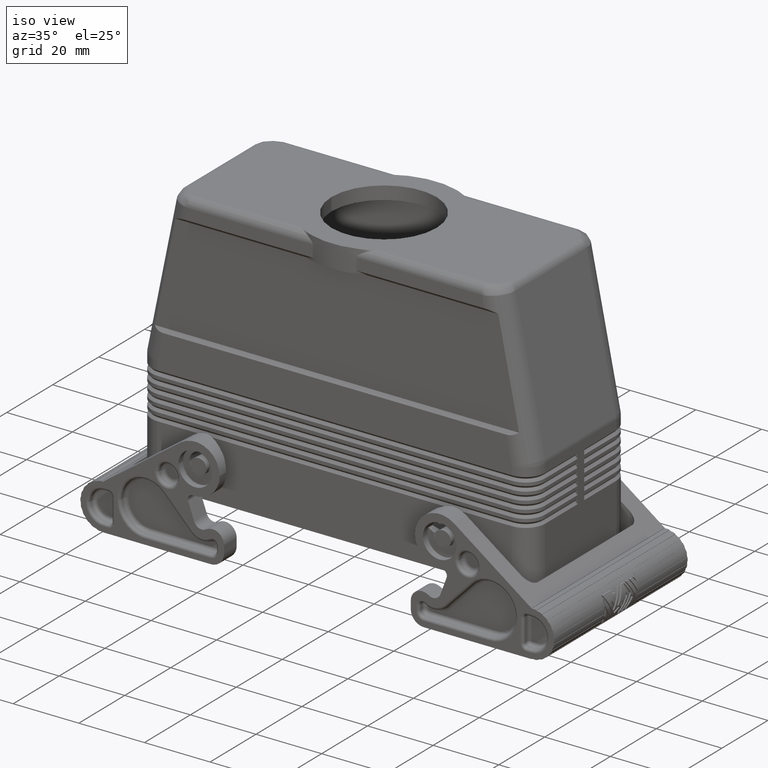
[diagram: clean part render]
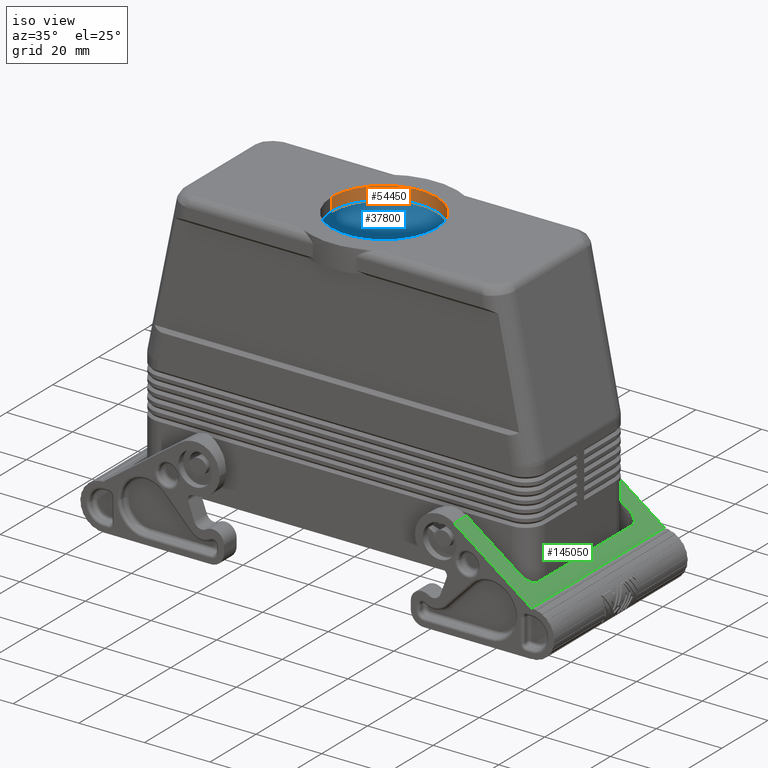
[diagram: same view with three faces highlighted in distinct colors, each labeled with its STEP entity id]
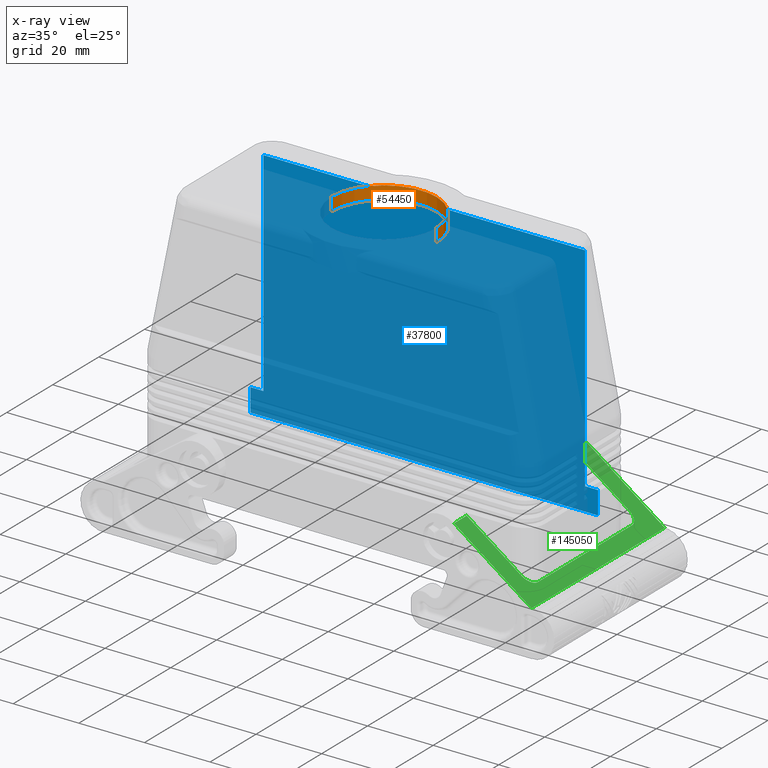
[diagram: x-ray of the same camera — body ghosted, the three highlighted faces saturated]
A machine part, iso view with three faces highlighted in distinct colors.
The next image is the same camera in x-ray (body ghosted, the three faces saturated) — at least one of them is partly hidden behind the body in this view.
Their STEP definitions:

[orange] entity #54450 — the highlighted cylindrical surface (partial cylindrical patch) has radius 16 mm, axis along (0, 0, 1).
#53910=CARTESIAN_POINT('',(9.603942E-16,0.,77.));
#53920=DIRECTION('',(1.920789E-16,0.,1.));
#53930=DIRECTION('',(-1.,0.,1.920789E-16));
#53940=AXIS2_PLACEMENT_3D('',#53910,#53920,#53930);
#53950=CIRCLE('',#53940,16.);
#53960=CARTESIAN_POINT('',(-16.,0.,77.));
#53970=VERTEX_POINT('',#53960);
#53980=CARTESIAN_POINT('',(16.,-1.95943487863577E-15,77.));
#53990=VERTEX_POINT('',#53980);
#54020=EDGE_CURVE('',#53990,#53970,#53950,.T.);
#54140=CARTESIAN_POINT('',(1.344552E-15,0.,79.));
#54150=DIRECTION('',(1.920789E-16,0.,1.));
#54160=DIRECTION('',(-1.,0.,1.920789E-16));
#54170=AXIS2_PLACEMENT_3D('',#54140,#54150,#54160);
#54180=CYLINDRICAL_SURFACE('',#54170,16.);
#54190=CARTESIAN_POINT('',(-16.,0.,79.));
#54200=DIRECTION('',(1.920789E-16,0.,1.));
#54210=VECTOR('',#54200,1.);
#54220=LINE('',#54190,#54210);
#54230=CARTESIAN_POINT('',(-16.,0.,81.));
#54240=VERTEX_POINT('',#54230);
#54250=EDGE_CURVE('',#53970,#54240,#54220,.T.);
#54260=ORIENTED_EDGE('',*,*,#54250,.F.);
#54270=CARTESIAN_POINT('',(1.72871E-15,0.,81.));
#54280=DIRECTION('',(0.,0.,-1.));
#54290=DIRECTION('',(-1.,0.,0.));
#54300=AXIS2_PLACEMENT_3D('',#54270,#54280,#54290);
#54310=CIRCLE('',#54300,16.);
#54320=CARTESIAN_POINT('',(16.,-1.95943487863577E-15,81.));
#54330=VERTEX_POINT('',#54320);
#54340=EDGE_CURVE('',#54240,#54330,#54310,.T.);
#54350=ORIENTED_EDGE('',*,*,#54340,.F.);
#54360=CARTESIAN_POINT('',(16.,-1.95943487863577E-15,79.));
#54370=DIRECTION('',(1.920789E-16,0.,1.));
#54380=VECTOR('',#54370,1.);
#54390=LINE('',#54360,#54380);
#54400=EDGE_CURVE('',#53990,#54330,#54390,.T.);
#54410=ORIENTED_EDGE('',*,*,#54400,.T.);
#54420=ORIENTED_EDGE('',*,*,#54020,.F.);
#54430=EDGE_LOOP('',(#54420,#54410,#54350,#54260));
#54440=FACE_OUTER_BOUND('',#54430,.T.);
#54450=ADVANCED_FACE('',(#54440),#54180,.F.);

[blue] entity #37800 — the highlighted planar face has unit normal (0, 1, 0).
#37090=CARTESIAN_POINT('',(-53.,17.5,0.));
#37100=DIRECTION('',(0.,1.,0.));
#37110=DIRECTION('',(0.,0.,1.));
#37120=AXIS2_PLACEMENT_3D('',#37090,#37100,#37110);
#37130=PLANE('',#37120);
#37140=CARTESIAN_POINT('',(-53.,17.5,0.));
#37150=DIRECTION('',(0.,0.,1.));
#37160=VECTOR('',#37150,1.);
#37170=LINE('',#37140,#37160);
#37180=CARTESIAN_POINT('',(-53.,17.5,5.));
#37190=VERTEX_POINT('',#37180);
#37200=CARTESIAN_POINT('',(-53.,17.5,12.));
#37210=VERTEX_POINT('',#37200);
#37220=EDGE_CURVE('',#37190,#37210,#37170,.T.);
#37230=ORIENTED_EDGE('',*,*,#37220,.F.);
#37240=CARTESIAN_POINT('',(-53.,17.5,12.));
#37250=DIRECTION('',(1.,0.,0.));
#37260=VECTOR('',#37250,4.);
#37270=LINE('',#37240,#37260);
#37280=CARTESIAN_POINT('',(-49.,17.5,12.));
#37290=VERTEX_POINT('',#37280);
#37300=EDGE_CURVE('',#37210,#37290,#37270,.T.);
#37310=ORIENTED_EDGE('',*,*,#37300,.F.);
#37320=CARTESIAN_POINT('',(-49.,17.5,12.));
#37330=DIRECTION('',(0.,0.,1.));
#37340=VECTOR('',#37330,65.);
#37350=LINE('',#37320,#37340);
#37360=CARTESIAN_POINT('',(-49.,17.5,77.));
#37370=VERTEX_POINT('',#37360);
#37380=EDGE_CURVE('',#37290,#37370,#37350,.T.);
#37390=ORIENTED_EDGE('',*,*,#37380,.F.);
#37400=CARTESIAN_POINT('',(14.142135623731,17.5,77.));
#37410=DIRECTION('',(1.,0.,0.));
#37420=VECTOR('',#37410,34.857864376269);
#37430=LINE('',#37400,#37420);
#37440=CARTESIAN_POINT('',(49.,17.5,77.));
#37450=VERTEX_POINT('',#37440);
#37460=EDGE_CURVE('',#37370,#37450,#37430,.T.);
#37470=ORIENTED_EDGE('',*,*,#37460,.F.);
#37480=CARTESIAN_POINT('',(49.,17.5,77.));
#37490=DIRECTION('',(0.,0.,-1.));
#37500=VECTOR('',#37490,65.);
#37510=LINE('',#37480,#37500);
#37520=CARTESIAN_POINT('',(49.,17.5,12.));
#37530=VERTEX_POINT('',#37520);
#37540=EDGE_CURVE('',#37450,#37530,#37510,.T.);
#37550=ORIENTED_EDGE('',*,*,#37540,.F.);
#37560=CARTESIAN_POINT('',(49.,17.5,12.));
#37570=DIRECTION('',(1.,0.,0.));
#37580=VECTOR('',#37570,4.);
#37590=LINE('',#37560,#37580);
#37600=CARTESIAN_POINT('',(53.,17.5,12.));
#37610=VERTEX_POINT('',#37600);
#37620=EDGE_CURVE('',#37530,#37610,#37590,.T.);
#37630=ORIENTED_EDGE('',*,*,#37620,.F.);
#37640=CARTESIAN_POINT('',(53.,17.5,5.));
#37650=DIRECTION('',(0.,0.,1.));
#37660=VECTOR('',#37650,7.);
#37670=LINE('',#37640,#37660);
#37680=CARTESIAN_POINT('',(53.,17.5,5.));
#37690=VERTEX_POINT('',#37680);
#37700=EDGE_CURVE('',#37690,#37610,#37670,.T.);
#37710=ORIENTED_EDGE('',*,*,#37700,.T.);
#37720=CARTESIAN_POINT('',(0.,17.5,5.));
#37730=DIRECTION('',(-1.,0.,0.));
#37740=VECTOR('',#37730,1.);
#37750=LINE('',#37720,#37740);
#37760=EDGE_CURVE('',#37690,#37190,#37750,.T.);
#37770=ORIENTED_EDGE('',*,*,#37760,.F.);
#37780=EDGE_LOOP('',(#37770,#37710,#37630,#37550,#37470,#37390,#37310,
#37230));
#37790=FACE_OUTER_BOUND('',#37780,.T.);
#37800=ADVANCED_FACE('',(#37790),#37130,.F.);

[green] entity #145050 — the highlighted planar face has unit normal (0.5862, -0, 0.8102).
#144160=CARTESIAN_POINT('',(41.6456308583117,-23.5,17.5765149120691));
#144170=DIRECTION('',(0.586150781108253,-4.29953371989779E-17,
0.810201988275877));
#144180=DIRECTION('',(-0.810201988275877,3.43543620292109E-16,
0.586150781108253));
#144190=AXIS2_PLACEMENT_3D('',#144160,#144170,#144180);
#144200=PLANE('',#144190);
#144210=CARTESIAN_POINT('',(-299.113423982439,23.5000000000002,
264.102923208916));
#144220=DIRECTION('',(0.810201988275877,-3.43543620292109E-16,
-0.586150781108253));
#144230=VECTOR('',#144220,1.);
#144240=LINE('',#144210,#144230);
#144250=CARTESIAN_POINT('',(41.6456308583118,23.5,17.576514912069));
#144260=VERTEX_POINT('',#144250);
#144270=CARTESIAN_POINT('',(58.249499999994,23.5,5.56423771743158));
#144280=VERTEX_POINT('',#144270);
#144290=EDGE_CURVE('',#144260,#144280,#144240,.T.);
#144300=ORIENTED_EDGE('',*,*,#144290,.T.);
#144310=CARTESIAN_POINT('',(41.6456308583117,29.,17.5765149120691));
#144320=DIRECTION('',(-3.03541474703354E-16,-1.,1.66533453693773E-16));
#144330=VECTOR('',#144320,1.);
#144340=LINE('',#144310,#144330);
#144350=CARTESIAN_POINT('',(41.6456308583118,29.,17.576514912069));
#144360=VERTEX_POINT('',#144350);
#144370=EDGE_CURVE('',#144360,#144260,#144340,.T.);
#144380=ORIENTED_EDGE('',*,*,#144370,.T.);
#144390=CARTESIAN_POINT('',(-299.113423982439,29.0000000000002,
264.102923208916));
#144400=DIRECTION('',(0.810201988275877,-3.43543620292109E-16,
-0.586150781108253));
#144410=VECTOR('',#144400,1.);
#144420=LINE('',#144390,#144410);
#144430=CARTESIAN_POINT('',(65.2495000000006,29.,0.500000000003894));
#144440=VERTEX_POINT('',#144430);
#144450=EDGE_CURVE('',#144360,#144440,#144420,.T.);
#144460=ORIENTED_EDGE('',*,*,#144450,.F.);
#144470=CARTESIAN_POINT('',(65.2495000000006,29.,0.500000000003894));
#144480=DIRECTION('',(3.03541474703354E-16,1.,-1.66533453693773E-16));
#144490=VECTOR('',#144480,1.);
#144500=LINE('',#144470,#144490);
#144510=CARTESIAN_POINT('',(65.2495000000005,-29.,0.500000000003908));
#144520=VERTEX_POINT('',#144510);
#144530=EDGE_CURVE('',#144520,#144440,#144500,.T.);
#144540=ORIENTED_EDGE('',*,*,#144530,.T.);
#144550=CARTESIAN_POINT('',(-299.113423982439,-28.9999999999999,
264.102923208916));
#144560=DIRECTION('',(0.810201988275877,-3.43543620292109E-16,
-0.586150781108253));
#144570=VECTOR('',#144560,1.);
#144580=LINE('',#144550,#144570);
#144590=CARTESIAN_POINT('',(41.6456308583117,-29.,17.5765149120691));
#144600=VERTEX_POINT('',#144590);
#144610=EDGE_CURVE('',#144600,#144520,#144580,.T.);
#144620=ORIENTED_EDGE('',*,*,#144610,.T.);
#144630=CARTESIAN_POINT('',(41.6456308583117,-23.5,17.5765149120691));
#144640=DIRECTION('',(-3.03541474703354E-16,-1.,1.66533453693773E-16));
#144650=VECTOR('',#144640,1.);
#144660=LINE('',#144630,#144650);
#144670=CARTESIAN_POINT('',(41.6456308583118,-23.5,17.576514912069));
#144680=VERTEX_POINT('',#144670);
#144690=EDGE_CURVE('',#144680,#144600,#144660,.T.);
#144700=ORIENTED_EDGE('',*,*,#144690,.T.);
#144710=CARTESIAN_POINT('',(-299.113423982439,-23.4999999999999,
264.102923208916));
#144720=DIRECTION('',(-0.810201988275877,3.43543620292109E-16,
0.586150781108253));
#144730=VECTOR('',#144720,1.);
#144740=LINE('',#144710,#144730);
#144750=CARTESIAN_POINT('',(58.249499999994,-23.5,5.5642377174316));
#144760=VERTEX_POINT('',#144750);
#144770=EDGE_CURVE('',#144760,#144680,#144740,.T.);
#144780=ORIENTED_EDGE('',*,*,#144770,.T.);
#144790=CARTESIAN_POINT('',(58.249499999994,-20.5,5.5642377174316));
#144800=DIRECTION('',(0.586150781108253,-4.29953371989779E-17,
0.810201988275877));
#144810=DIRECTION('',(-0.810201988275877,3.43543620292109E-16,
0.586150781108253));
#144820=AXIS2_PLACEMENT_3D('',#144790,#144800,#144810);
#144830=ELLIPSE('',#144820,3.70278034787849,3.);
#144840=CARTESIAN_POINT('',(61.249499999994,-20.5,3.39385012425033));
#144850=VERTEX_POINT('',#144840);
#144860=EDGE_CURVE('',#144760,#144850,#144830,.T.);
#144870=ORIENTED_EDGE('',*,*,#144860,.F.);
#144880=CARTESIAN_POINT('',(61.249499999994,29.,3.39385012425036));
#144890=DIRECTION('',(3.03541474703354E-16,1.,-1.66533453693773E-16));
#144900=VECTOR('',#144890,1.);
#144910=LINE('',#144880,#144900);
#144920=CARTESIAN_POINT('',(61.249499999994,20.5,3.39385012425032));
#144930=VERTEX_POINT('',#144920);
#144940=EDGE_CURVE('',#144850,#144930,#144910,.T.);
#144950=ORIENTED_EDGE('',*,*,#144940,.F.);
#144960=CARTESIAN_POINT('',(58.249499999994,20.5,5.5642377174316));
#144970=DIRECTION('',(0.586150781108253,-4.29953371989779E-17,
0.810201988275877));
#144980=DIRECTION('',(-0.810201988275877,3.43543620292109E-16,
0.586150781108253));
#144990=AXIS2_PLACEMENT_3D('',#144960,#144970,#144980);
#145000=ELLIPSE('',#144990,3.70278034787849,3.);
#145010=EDGE_CURVE('',#144930,#144280,#145000,.T.);
#145020=ORIENTED_EDGE('',*,*,#145010,.F.);
#145030=EDGE_LOOP('',(#145020,#144950,#144870,#144780,#144700,#144620,
#144540,#144460,#144380,#144300));
#145040=FACE_OUTER_BOUND('',#145030,.T.);
#145050=ADVANCED_FACE('',(#145040),#144200,.T.);